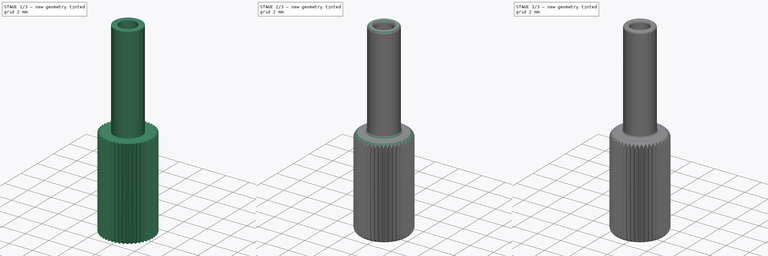
[diagram: build sequence overview — one tinted view per stage of 3, left to right]
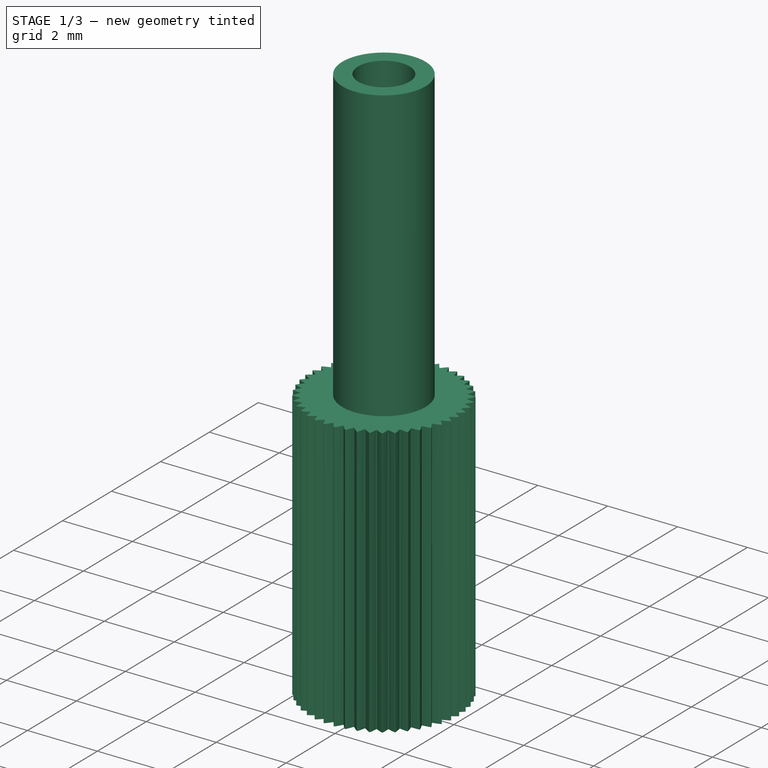
[diagram: stage 1 of 3 — iso view after this stage's code; geometry added in this stage tinted green]
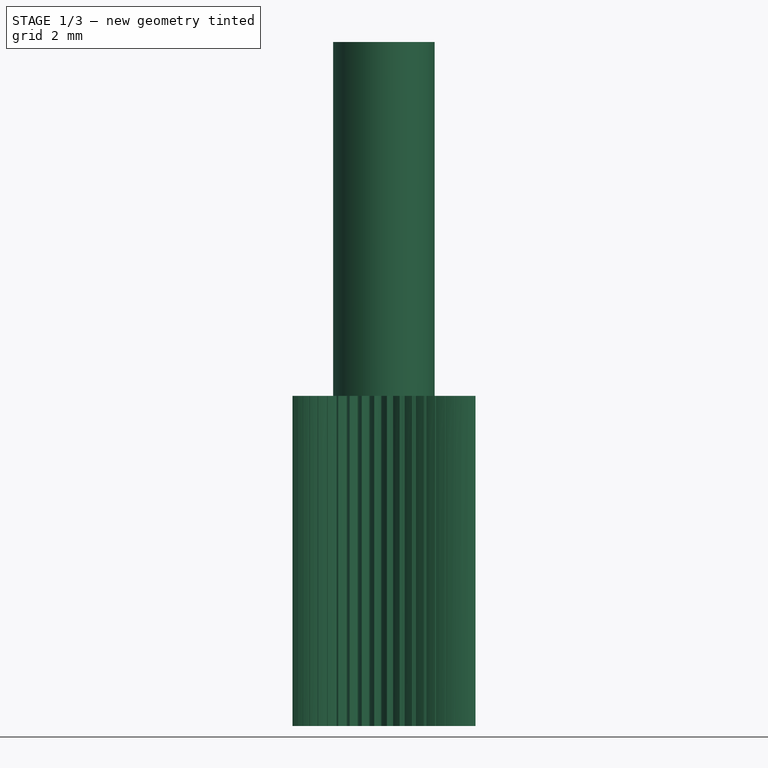
[diagram: stage 1 of 3 — front view after this stage's code; geometry added in this stage tinted green]
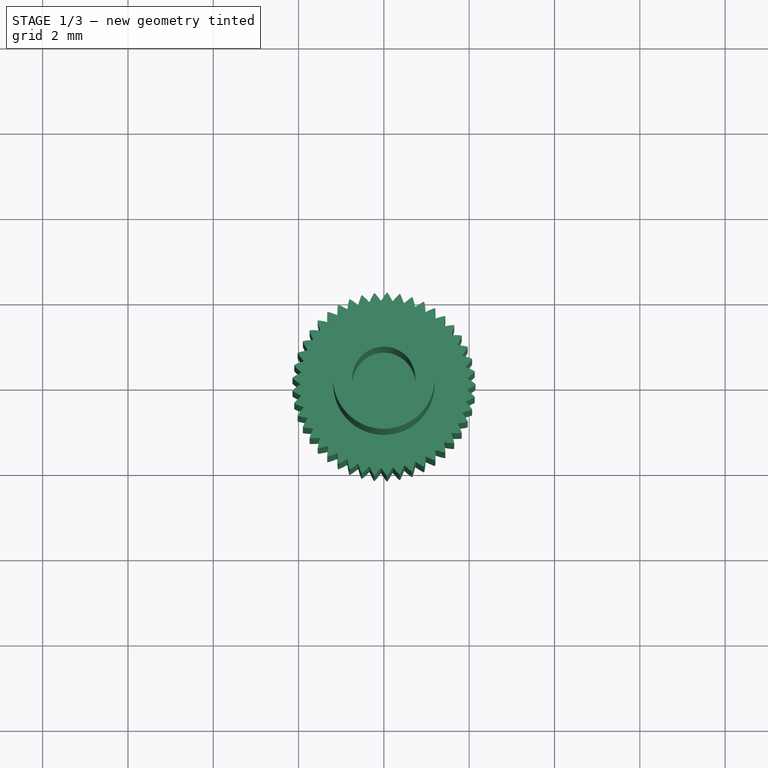
[diagram: stage 1 of 3 — top view after this stage's code; geometry added in this stage tinted green]
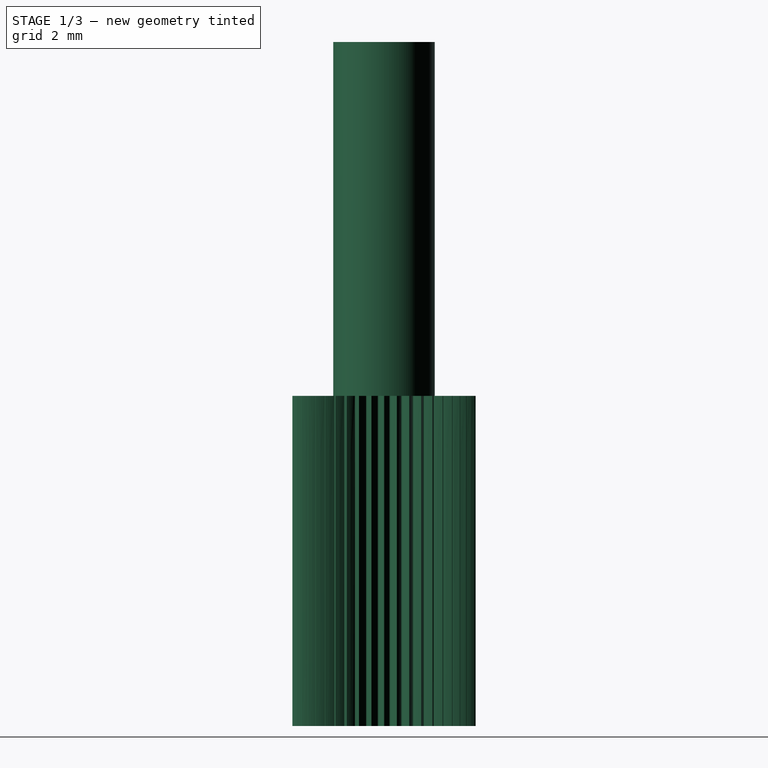
[diagram: stage 1 of 3 — right view after this stage's code; geometry added in this stage tinted green]
FCSTD DOCUMENT  (FreeCAD 0.18R16110 (Git))
Label: Fiber optic plug v4
License: All rights reserved
LicenseURL: http://en.wikipedia.org/wiki/All_rights_reserved
objects: Sketcher::SketchObject×3, PartDesign::Pad×2, Spreadsheet::Sheet×1, Part::Feature×1, PartDesign::FeatureBase×1, PartDesign::Fillet×1, PartDesign::Groove×1, PartDesign::Pocket×1, PartDesign::Body×1
note: 15 computed .brp shape members not serialized (recipe doc carries the construction recipe); baked Part::Feature solids carry a one-line shape summary decoded from their .brp

FEATURE [Sketcher::SketchObject] Sketch  label="Holder profile"
  MapMode = 5
  Placement = pos=(0,0,7.7404) rot=(0,0,1;0rad)
  expr: Constraints[3] = ss.id / 2
  expr: Constraints[2] = ss.od / 2
  sketch-geometry (2):
    g0: Circle CenterX=0 CenterY=0 CenterZ=0 NormalX=0 NormalY=0 NormalZ=1 AngleXU=0 Radius=1.19
    g1: Circle CenterX=0 CenterY=0 CenterZ=0 NormalX=0 NormalY=0 NormalZ=1 AngleXU=0 Radius=0.7366
  constraints (4):
    c: Coincident(g0,g1)
    c: Coincident(g0,g-1)
    c: Radius(g0) = 1.19
    c: Radius(g1) = 0.7366
FEATURE [Sketcher::SketchObject] Sketch001
  MapMode = 5
  Placement = pos=(0,0,0) rot=(1,0,0;1.5708rad)
  Support = -> [XZ_Plane]
  expr: Constraints[19] = ss.Lm
  sketch-geometry (6):
    g0: ArcOfCircle CenterX=-1.71626 CenterY=0.436055 CenterZ=0 NormalX=0 NormalY=0 NormalZ=1 AngleXU=0 Radius=0.436055 StartAngle=3.14159 EndAngle=4.71239
    g1: LineSegment StartX=-2.15232 StartY=0.436055 StartZ=0 EndX=-2.15232 EndY=0 EndZ=0
    g2: LineSegment StartX=-2.15232 StartY=0 StartZ=0 EndX=-1.71626 EndY=0 EndZ=0
    g3: ArcOfCircle CenterX=-1.71626 CenterY=7.30435 CenterZ=0 NormalX=0 NormalY=0 NormalZ=1 AngleXU=0 Radius=0.436055 StartAngle=1.5708 EndAngle=3.14159
    g4: LineSegment StartX=-1.71626 StartY=7.7404 StartZ=0 EndX=-2.15232 EndY=7.7404 EndZ=0
    g5: LineSegment StartX=-2.15232 StartY=7.7404 StartZ=0 EndX=-2.15232 EndY=7.30435 EndZ=0
  constraints (20):
    c: Coincident(g0,g2)
    c: Coincident(g1,g2)
    c: Coincident(g0,g1)
    c: Vertical(g1)
    c: Horizontal(g2)
    c: DistanceY(g1) = 0
    c: Equal(g1,g2)
    c: DistanceX(g0,g0) = 0
    c: DistanceX(g0) = -2.15232
    c: Radius(g0) = 0.436055
    c: Coincident(g4,g5)
    c: Coincident(g3,g5)
    c: Coincident(g3,g4)
    c: Equal(g4,g5)
    c: Vertical(g5)
    c: Horizontal(g4)
    c: DistanceY(g3,g3) = 0
    c: Equal(g1,g5)
    c: DistanceX(g0,g3) = 0
    c: DistanceY(g4) = 7.7404
FEATURE [Sketcher::SketchObject] Sketch002
  MapMode = 5
  Placement = pos=(0,0,0) rot=(0.57735,0.57735,0.57735;2.0944rad)
  Support = -> [YZ_Plane]
  expr: Constraints[2] = ss.Lm + ss.Ls + ss.id / 2
  expr: Constraints[1] = ss.id / 2
  sketch-geometry (1):
    g0: Circle CenterX=0 CenterY=13.2174 CenterZ=0 NormalX=0 NormalY=0 NormalZ=1 AngleXU=0 Radius=0.7366
  constraints (3):
    c: DistanceX(g0) = 0
    c: Radius(g0) = 0.7366
    c: DistanceY(g0) = 13.2174
FEATURE [Spreadsheet::Sheet] Spreadsheet  label="ss"
  cells = A1=Inner diameter; B1(id)==58thou; A2=Outer diameter; B2(od)==2.38mm; A3=Solid holder length; B3(Ls)==0.226" - 1mm; A4=Hollow holder length; B4(Lh)==(0.226" - 1mm) * 0.75; A5=Mount length; B5(Lm)==0.226" + 2mm
FEATURE [Part::Feature] InvoluteGear001  label="Mount"
  shape: bbox 4.293 x 4.295 x 7.74 mm, 182 faces (baked)
FEATURE [PartDesign::FeatureBase] BaseFeature
  BaseFeature = -> InvoluteGear001
FEATURE [PartDesign::Pad] Pad
  BaseFeature = -> BaseFeature
  Length = 8.2957
  Length2 = 99.9998
  Profile = -> Sketch
  Type = 0
  expr: Length = ss.Ls + ss.Lh
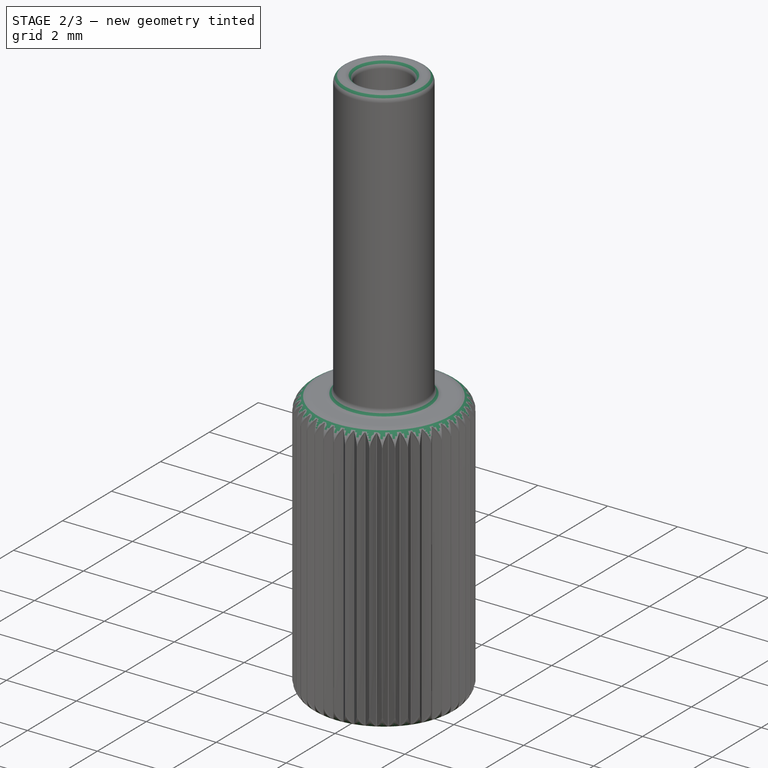
[diagram: stage 2 of 3 — iso view after this stage's code; geometry added in this stage tinted green]
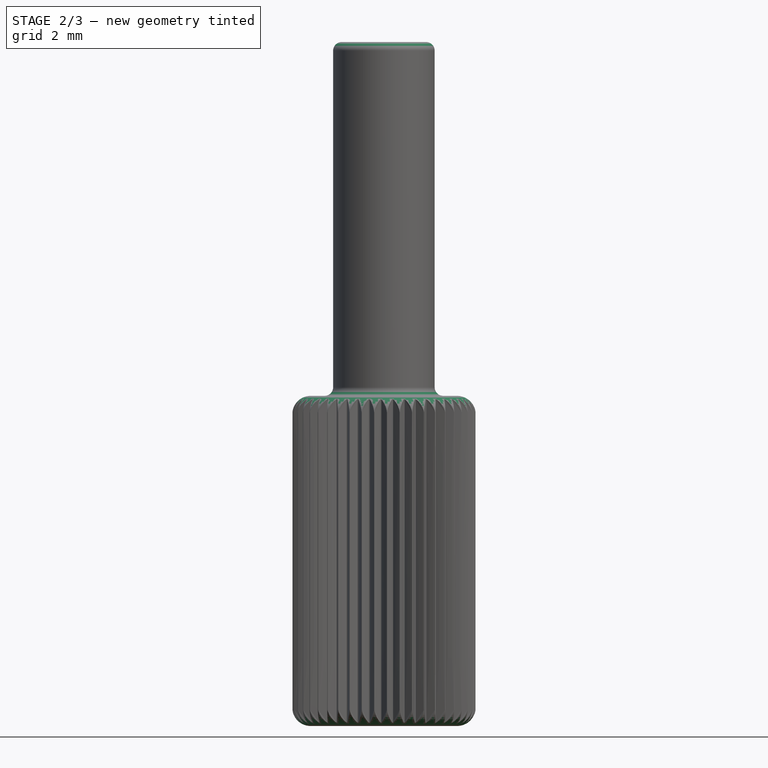
[diagram: stage 2 of 3 — front view after this stage's code; geometry added in this stage tinted green]
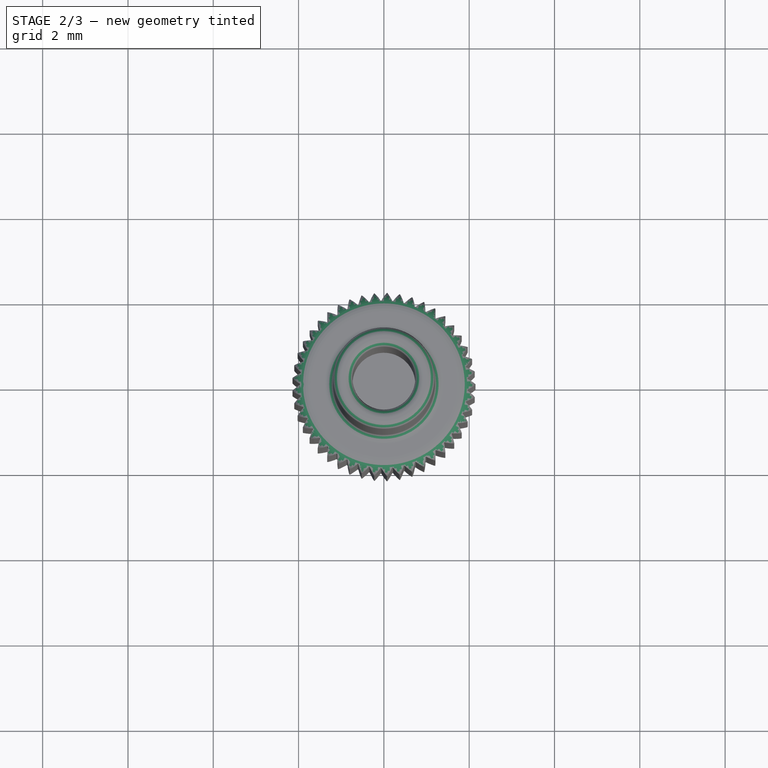
[diagram: stage 2 of 3 — top view after this stage's code; geometry added in this stage tinted green]
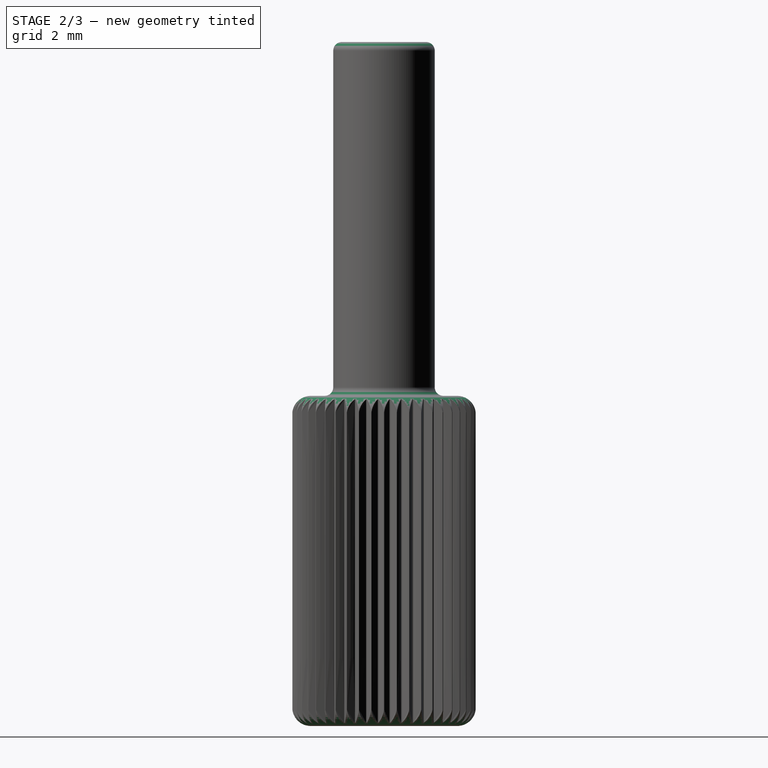
[diagram: stage 2 of 3 — right view after this stage's code; geometry added in this stage tinted green]
FEATURE [PartDesign::Fillet] Fillet
  Base = -> Pad [Edge544,Edge543,Edge365]
  BaseFeature = -> Pad
  Radius = 0.2032
FEATURE [PartDesign::Groove] Groove
  Angle = 360
  Axis = (-3e-16,3e-16,1)
  Base = (0,0,0)
  BaseFeature = -> Fillet
  Profile = -> Sketch001
  ReferenceAxis = -> Z_Axis
  Reversed = true
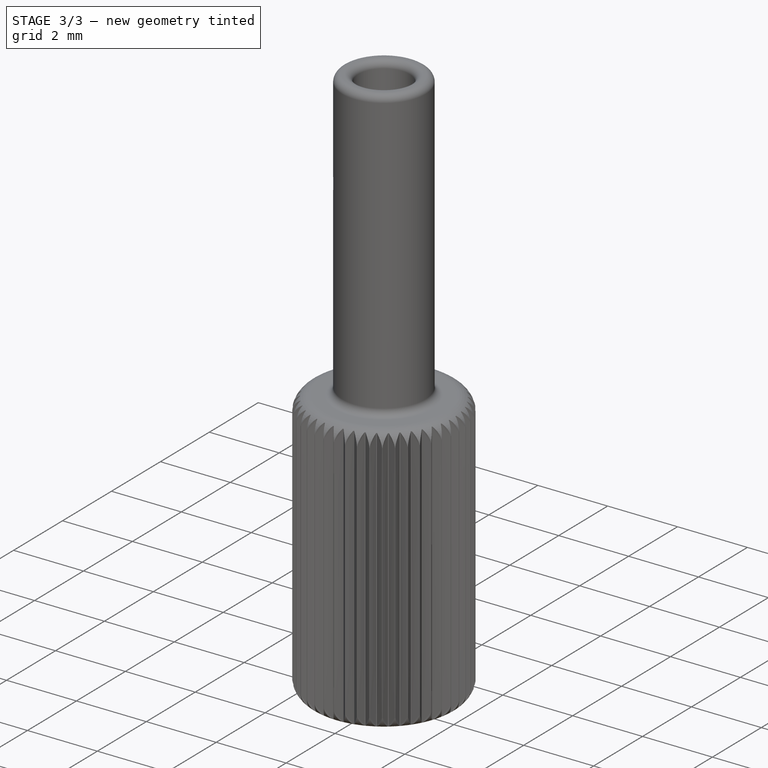
[diagram: stage 3 of 3 — iso view after this stage's code; geometry added in this stage tinted green]
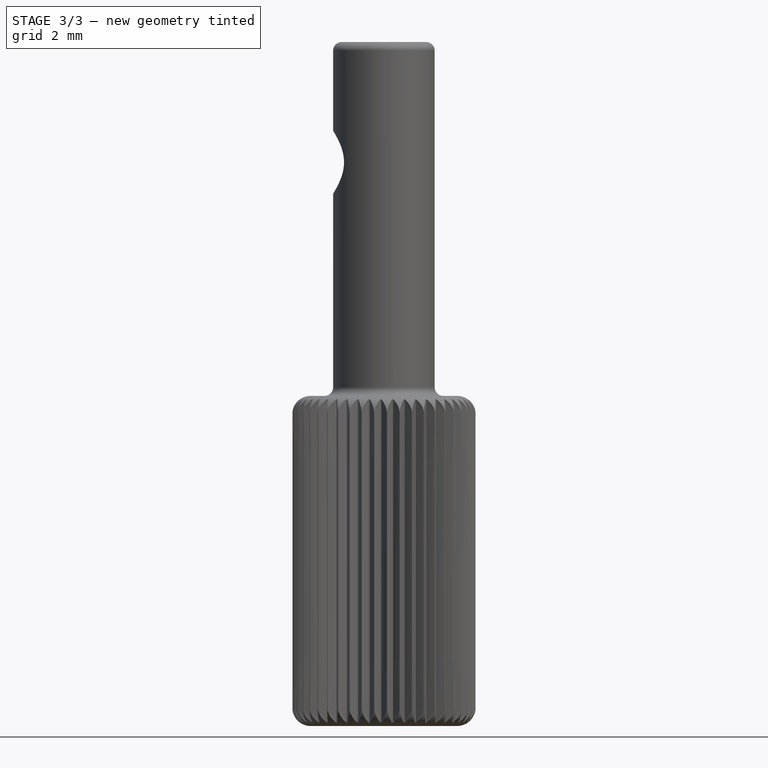
[diagram: stage 3 of 3 — front view after this stage's code; geometry added in this stage tinted green]
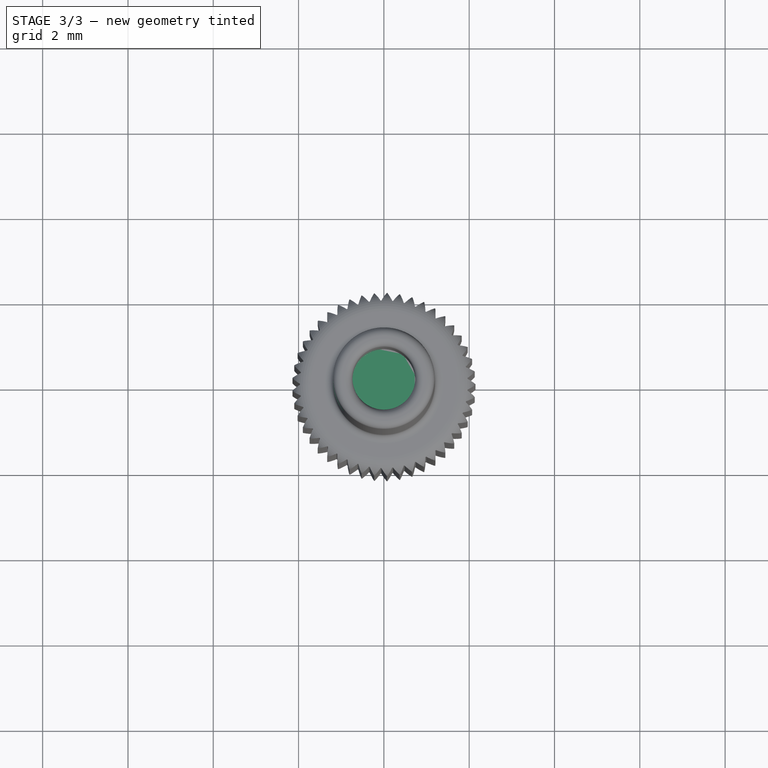
[diagram: stage 3 of 3 — top view after this stage's code; geometry added in this stage tinted green]
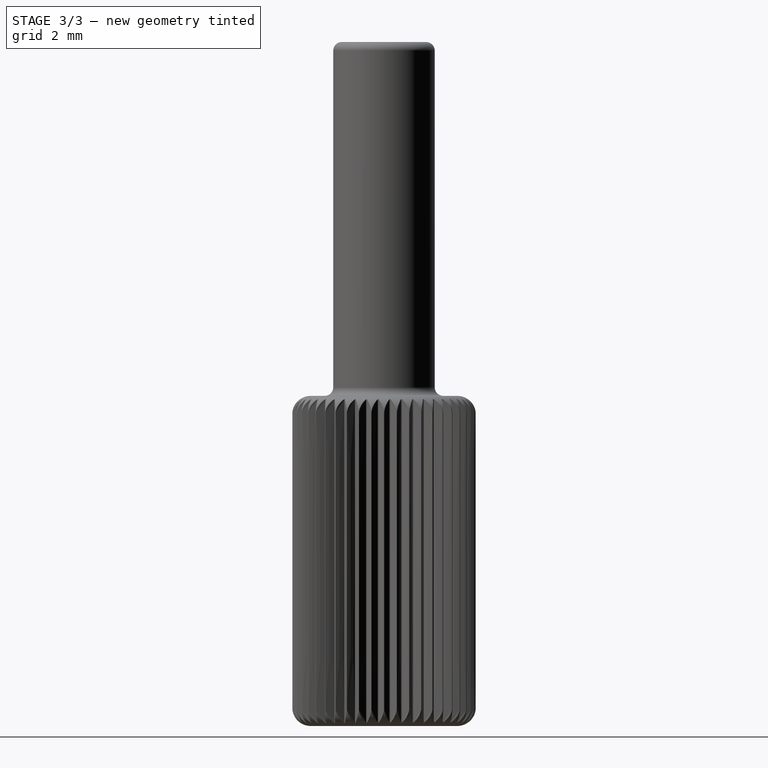
[diagram: stage 3 of 3 — right view after this stage's code; geometry added in this stage tinted green]
FEATURE [PartDesign::Pocket] Pocket
  BaseFeature = -> Groove
  Length = 5.00126
  Length2 = 99.9998
  Profile = -> Sketch002
  Type = 1
FEATURE [PartDesign::Pad] Pad001
  BaseFeature = -> Pocket
  Length = 4.7404
  Length2 = 99.9998
  Profile = -> Pocket [Face192]
  Type = 0
  expr: Length = ss.Ls
FEATURE [PartDesign::Body] Body
  BaseFeature = -> InvoluteGear001
  Group = -> [BaseFeature,Sketch,Pad,Fillet,Sketch001,Groove,Sketch002,Pocket,Pad001]
  Origin = -> Origin
  Tip = -> Pad001
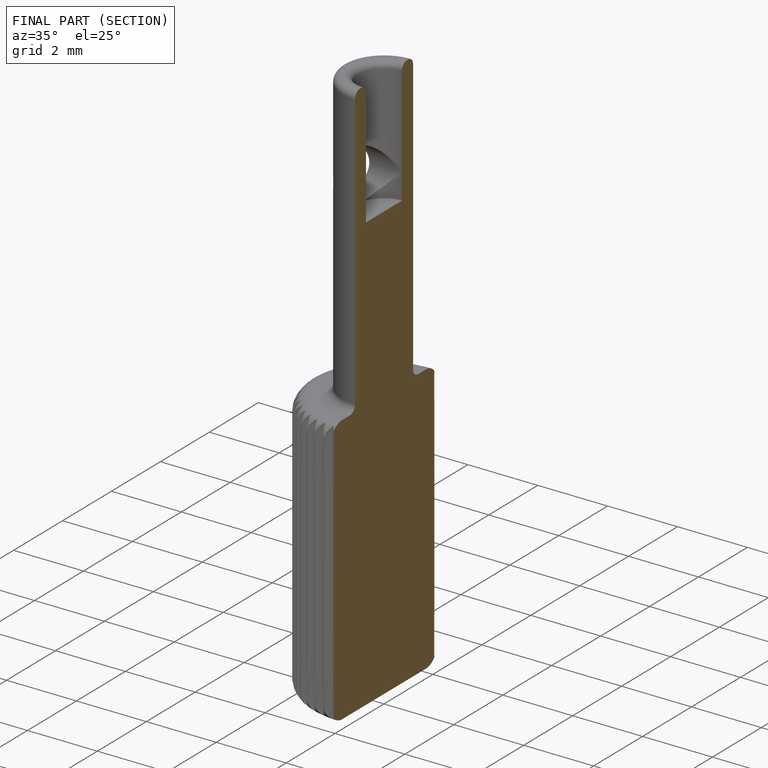
[diagram: finished part — half-section view (interior)]
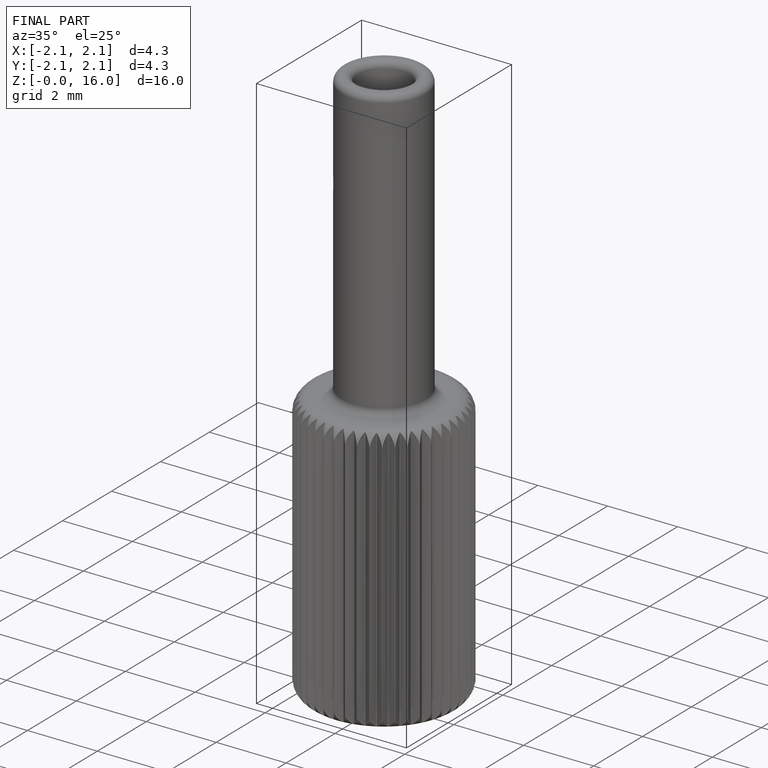
[diagram: finished part — iso view with bounding-box wireframe]
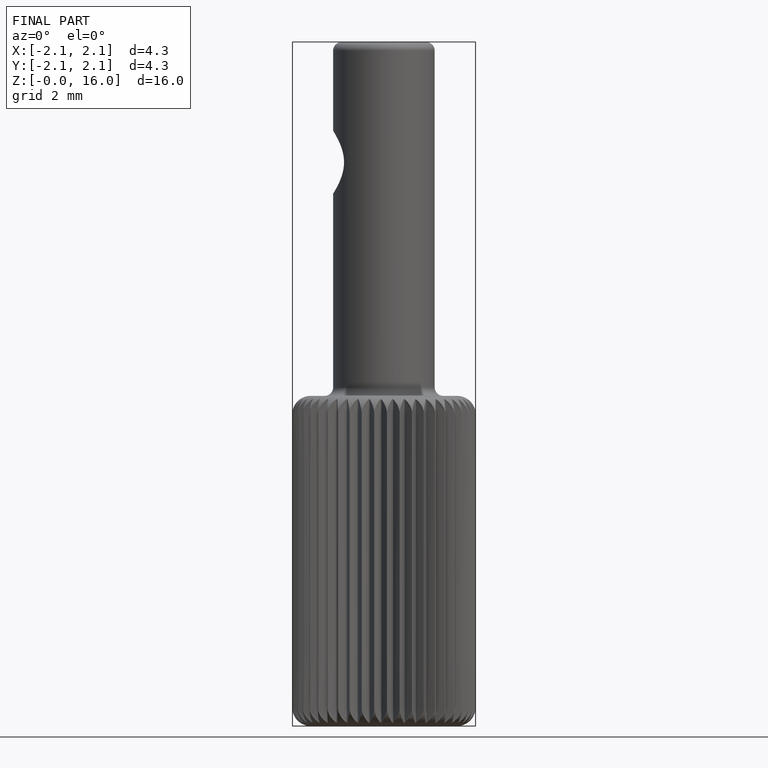
[diagram: finished part — front view with bounding-box wireframe]
